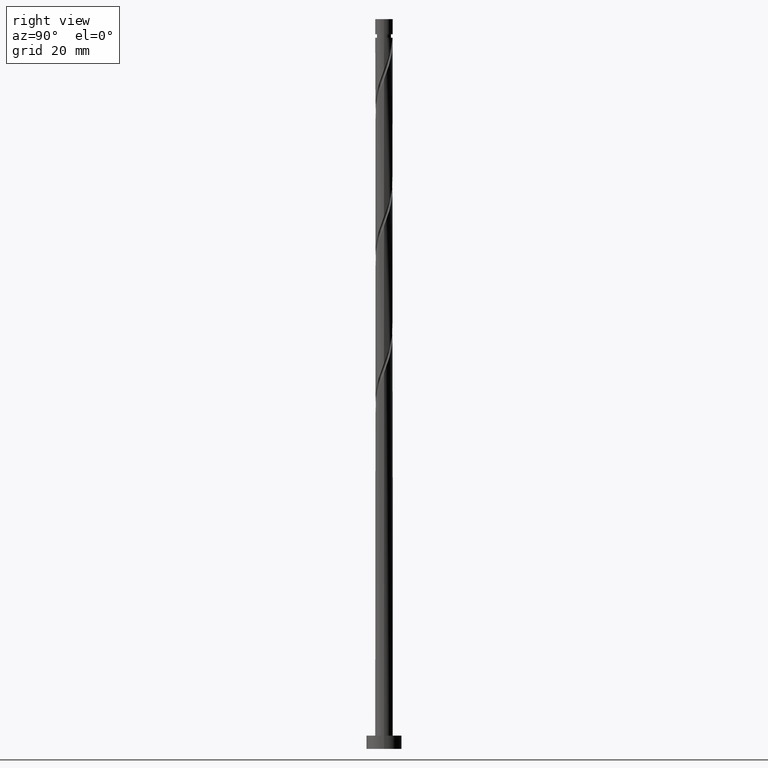
[diagram: clean part render]
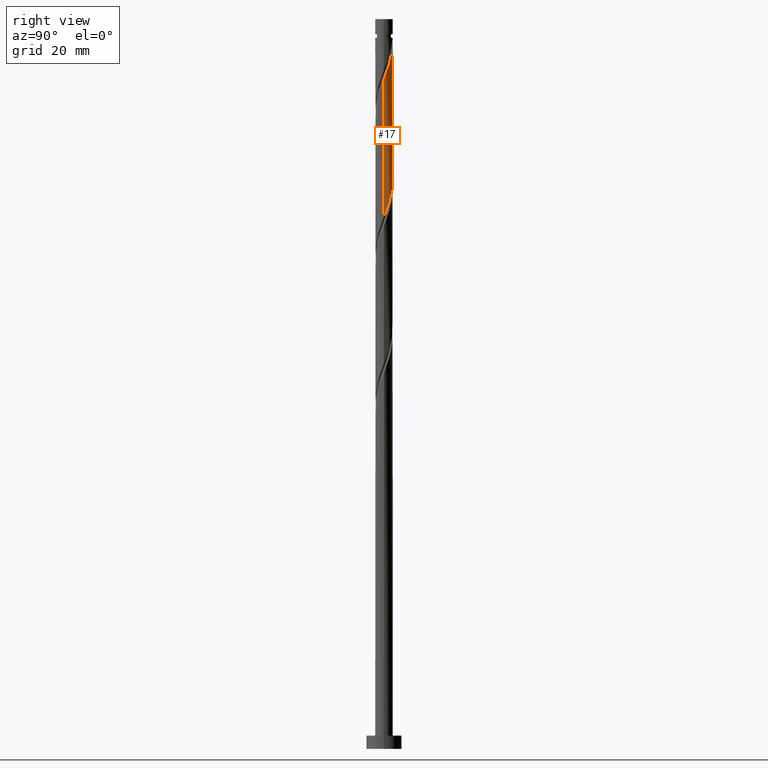
[diagram: same view with one face highlighted and labeled with its STEP entity id]
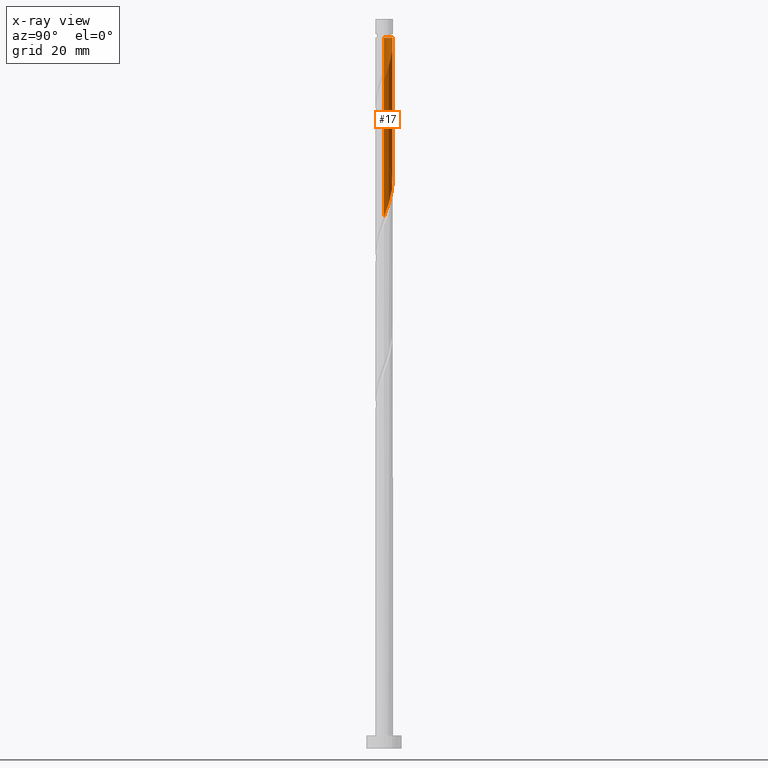
[diagram: x-ray of the same camera — body ghosted, the highlighted face saturated]
A machine part, right view. The second image highlights one B-rep face of the part: STEP entity #17.
The next image is the same camera in x-ray: the body ghosted, the highlighted face saturated — about 0% of this face is hidden behind the body in this view.
In plain terms, the highlighted cylindrical surface (edge-blend (fillet) strip) has radius 2 mm, axis along (-0, -0, -1).
Its self-contained STEP definition (entity closure, byte-faithful):
#17 = ADVANCED_FACE ( 'NONE', ( #1315 ), #1201, .T. ) ;
#19 = ORIENTED_EDGE ( 'NONE', *, *, #1736, .F. ) ;
#68 = CARTESIAN_POINT ( 'NONE',  ( 1.980049565276632340, 0.3856594865056684474, 121.9786417367380835 ) ) ;
#74 = ORIENTED_EDGE ( 'NONE', *, *, #1160, .F. ) ;
#84 = DIRECTION ( 'NONE',  ( -0.000000000000000000, -0.000000000000000000, -1.000000000000000000 ) ) ;
#91 = CARTESIAN_POINT ( 'NONE',  ( 0.3979949748426486189, 1.959999999999999520, 128.2286417367380693 ) ) ;
#103 = LINE ( 'NONE', #1595, #358 ) ;
#129 = DIRECTION ( 'NONE',  ( -1.000000000000000000, 0.000000000000000000, 0.000000000000000000 ) ) ;
#171 = CARTESIAN_POINT ( 'NONE',  ( 1.324015695162691797, 1.521943481029063294, 156.7008639589602979 ) ) ;
#217 = CARTESIAN_POINT ( 'NONE',  ( -1.999999999999999556, -1.330886815482187283E-15, 137.6255417252814937 ) ) ;
#219 = CARTESIAN_POINT ( 'NONE',  ( 1.667354236715038684, 1.104504345536226229, 124.0619750700713837 ) ) ;
#229 = CARTESIAN_POINT ( 'NONE',  ( -1.999999999999999556, -1.330886815482187480E-15, 137.6255417252814937 ) ) ;
#269 = CARTESIAN_POINT ( 'NONE',  ( 1.104504345536229337, 1.667354236715040905, 157.3953084034047265 ) ) ;
#338 = CARTESIAN_POINT ( 'NONE',  ( 1.324673758792282108, 1.498412303996174533, 125.4508639589602979 ) ) ;
#346 = CARTESIAN_POINT ( 'NONE',  ( 2.000000000000002665, -7.476892221809986216E-16, 152.1650750815280162 ) ) ;
#358 = VECTOR ( 'NONE', #1424, 1000.000000000000000 ) ;
#363 = LINE ( 'NONE', #1288, #1253 ) ;
#368 = CARTESIAN_POINT ( 'NONE',  ( -1.959999999999999520, 0.3979949748426483969, 136.5619750700714121 ) ) ;
#378 = EDGE_CURVE ( 'NONE', #1019, #548, #928, .T. ) ;
#380 = CARTESIAN_POINT ( 'NONE',  ( -1.104504345536226451, 1.667354236715038684, 132.3953084034047265 ) ) ;
#389 = CARTESIAN_POINT ( 'NONE',  ( -1.790205940182196809, 0.8917189533347228414, 135.1730861811824980 ) ) ;
#424 = CARTESIAN_POINT ( 'NONE',  ( -1.999999999999992228, 0.000000000000000000, 161.5619750700714121 ) ) ;
#429 = CARTESIAN_POINT ( 'NONE',  ( 1.672808912829666372, 1.127404036555501587, 155.3119750700713837 ) ) ;
#454 = CARTESIAN_POINT ( 'NONE',  ( 0.3856594865056718890, 1.980049565276634782, 159.4786417367380693 ) ) ;
#480 = CARTESIAN_POINT ( 'NONE',  ( 1.896407278838823540, 0.6353262412077164134, 122.6730861811825122 ) ) ;
#482 = CARTESIAN_POINT ( 'NONE',  ( 0.000000000000000000, 0.000000000000000000, 161.5619750700714121 ) ) ;
#533 = CARTESIAN_POINT ( 'NONE',  ( -1.324015695162688022, 1.521943481029062628, 133.0897528478492120 ) ) ;
#548 = VERTEX_POINT ( 'NONE', #622 ) ;
#551 = CARTESIAN_POINT ( 'NONE',  ( 1.999999999999999556, -2.624389169855325064E-15, 120.9588750586148080 ) ) ;
#570 = CARTESIAN_POINT ( 'NONE',  ( 1.790205940182200806, 0.8917189533347229524, 154.6175306256269266 ) ) ;
#586 =( BOUNDED_CURVE ( )  B_SPLINE_CURVE ( 2, ( #229, #1589, #368, #1738, #389, #905, #1450, #533, #380, #786, #935, #1063, #1319, #1302, #91, #635, #1709, #877, #338, #1570, #219, #768, #480, #68, #1425, #1666, #1015 ),
 .UNSPECIFIED., .F., .T. ) 
 B_SPLINE_CURVE_WITH_KNOTS ( ( 3, 2, 2, 2, 2, 2, 2, 2, 2, 2, 2, 2, 2, 3 ),
 ( 0.4295317669814460171, 0.4375000000000000000, 0.4479166666666666852, 0.4583333333333333148, 0.4687500000000000000, 0.4791666666666666852, 0.4895833333333333148, 0.5000000000000000000, 0.5104166666666666297, 0.5208333333333333703, 0.5312500000000000000, 0.5416666666666666297, 0.5520833333333333703, 0.5545317669814462391 ),
 .UNSPECIFIED. ) 
 CURVE ( )  GEOMETRIC_REPRESENTATION_ITEM ( )  RATIONAL_B_SPLINE_CURVE ( ( 0.9062941362546449442, 0.9031415850403486933, 0.9090909090909243817, 0.9013135103398426384, 0.9090909090909243817, 0.9013135103398426384, 0.9090909090909243817, 0.9013135103398426384, 0.9090909090909243817, 0.9013135103398426384, 0.9090909090909243817, 0.9013135103398426384, 0.9090909090909243817, 0.9013135103398426384, 0.9090909090909243817, 0.9013135103398426384, 0.9090909090909243817, 0.9013135103398426384, 0.9090909090909243817, 0.9013135103398426384, 0.9090909090909243817, 0.9013135103398426384, 0.9090909090909243817, 0.9013135103398426384, 0.9090909090909243817, 0.9072628343904182158, 0.9062941362546447222 ) ) 
 REPRESENTATION_ITEM ( '' )  );
#622 = CARTESIAN_POINT ( 'NONE',  ( -0.3979949748426701572, 1.960000000000001297, 161.5619750700714690 ) ) ;
#635 = CARTESIAN_POINT ( 'NONE',  ( 0.6560338701139459827, 1.907602967534731464, 127.5341972922936833 ) ) ;
#641 = DIRECTION ( 'NONE',  ( -0.000000000000000000, -0.000000000000000000, -1.000000000000000000 ) ) ;
#689 = EDGE_LOOP ( 'NONE', ( #899, #831, #74, #19, #1079 ) ) ;
#708 =( BOUNDED_CURVE ( )  B_SPLINE_CURVE ( 2, ( #980, #1520, #847, #822, #570, #429, #1386, #171, #269, #1250, #1369, #454, #1529, #989, #856 ),
 .UNSPECIFIED., .F., .T. ) 
 B_SPLINE_CURVE_WITH_KNOTS ( ( 3, 2, 2, 2, 2, 2, 2, 3 ),
 ( 0.6795317669814462391, 0.6875000000000000000, 0.6979166666666666297, 0.7083333333333331483, 0.7187499999999998890, 0.7291666666666666297, 0.7395833333333330373, 0.7499999999999997780 ),
 .UNSPECIFIED. ) 
 CURVE ( )  GEOMETRIC_REPRESENTATION_ITEM ( )  RATIONAL_B_SPLINE_CURVE ( ( 0.9062941362546513835, 0.9031415850403555767, 0.9090909090909310430, 0.9013135103398492998, 0.9090909090909310430, 0.9013135103398492998, 0.9090909090909310430, 0.9013135103398492998, 0.9090909090909310430, 0.9013135103398492998, 0.9090909090909310430, 0.9013135103398492998, 0.9090909090909310430, 0.9013135103398495218, 0.9090909090909308210 ) ) 
 REPRESENTATION_ITEM ( '' )  );
#768 = CARTESIAN_POINT ( 'NONE',  ( 1.812764992401016295, 0.8849929959097645460, 123.3675306256269693 ) ) ;
#786 = CARTESIAN_POINT ( 'NONE',  ( -0.8849929959097657672, 1.812764992401015851, 131.7008639589602979 ) ) ;
#822 = CARTESIAN_POINT ( 'NONE',  ( 1.907602967534735683, 0.6560338701139443174, 153.9230861811825264 ) ) ;
#831 = ORIENTED_EDGE ( 'NONE', *, *, #1501, .T. ) ;
#847 = CARTESIAN_POINT ( 'NONE',  ( 1.960000000000003073, 0.3979949748426481748, 153.2286417367380977 ) ) ;
#856 = CARTESIAN_POINT ( 'NONE',  ( -0.3979949748426701572, 1.960000000000001297, 161.5619750700714690 ) ) ;
#877 = CARTESIAN_POINT ( 'NONE',  ( 1.127404036555502476, 1.672808912829662376, 126.1453084034047691 ) ) ;
#899 = ORIENTED_EDGE ( 'NONE', *, *, #1004, .F. ) ;
#905 = CARTESIAN_POINT ( 'NONE',  ( -1.672808912829663486, 1.127404036555500921, 134.4786417367380693 ) ) ;
#928 = CIRCLE ( 'NONE', #1465, 1.999999999999992228 ) ;
#935 = CARTESIAN_POINT ( 'NONE',  ( -0.6353262412077175236, 1.896407278838823096, 131.0064195145158408 ) ) ;
#980 = CARTESIAN_POINT ( 'NONE',  ( 2.000000000000002665, -7.476892221809986216E-16, 152.1650750815280162 ) ) ;
#989 = CARTESIAN_POINT ( 'NONE',  ( -0.1399560795713446493, 2.012397032465270019, 160.8675306256270119 ) ) ;
#1004 = EDGE_CURVE ( 'NONE', #1164, #548, #708, .T. ) ;
#1015 = CARTESIAN_POINT ( 'NONE',  ( 1.999999999999999556, -2.624389169855325064E-15, 120.9588750586148223 ) ) ;
#1019 = VERTEX_POINT ( 'NONE', #424 ) ;
#1063 = CARTESIAN_POINT ( 'NONE',  ( -0.3856594865056697241, 1.980049565276632340, 130.3119750700714405 ) ) ;
#1079 = ORIENTED_EDGE ( 'NONE', *, *, #378, .T. ) ;
#1160 = EDGE_CURVE ( 'NONE', #1497, #1646, #586, .T. ) ;
#1164 = VERTEX_POINT ( 'NONE', #346 ) ;
#1201 = CYLINDRICAL_SURFACE ( 'NONE', #1611, 2.000000000000000000 ) ;
#1211 = DIRECTION ( 'NONE',  ( -0.000000000000000000, -0.000000000000000000, -1.000000000000000000 ) ) ;
#1250 = CARTESIAN_POINT ( 'NONE',  ( 0.8849929959097684318, 1.812764992401017849, 158.0897528478492120 ) ) ;
#1253 = VECTOR ( 'NONE', #641, 1000.000000000000000 ) ;
#1288 = CARTESIAN_POINT ( 'NONE',  ( -2.000000000000000000, 0.000000000000000000, 165.8000000000000114 ) ) ;
#1302 = CARTESIAN_POINT ( 'NONE',  ( 0.1399560795713525041, 2.012397032465266911, 128.9230861811825264 ) ) ;
#1315 = FACE_OUTER_BOUND ( 'NONE', #689, .T. ) ;
#1319 = CARTESIAN_POINT ( 'NONE',  ( -0.1228517034671585684, 1.996223298870949403, 129.6175306256269550 ) ) ;
#1369 = CARTESIAN_POINT ( 'NONE',  ( 0.6353262412077200771, 1.896407278838825983, 158.7841972922936691 ) ) ;
#1386 = CARTESIAN_POINT ( 'NONE',  ( 1.498412303996179196, 1.324673758792282108, 156.0064195145158124 ) ) ;
#1419 = DIRECTION ( 'NONE',  ( -1.000000000000000000, 0.000000000000000000, 0.000000000000000000 ) ) ;
#1424 = DIRECTION ( 'NONE',  ( -0.000000000000000000, -0.000000000000000000, -1.000000000000000000 ) ) ;
#1425 = CARTESIAN_POINT ( 'NONE',  ( 1.996223298870949403, 0.1228517034671576524, 121.2841972922935980 ) ) ;
#1450 = CARTESIAN_POINT ( 'NONE',  ( -1.498412303996174977, 1.324673758792281442, 133.7841972922936122 ) ) ;
#1465 = AXIS2_PLACEMENT_3D ( 'NONE', #482, #84, #1419 ) ;
#1497 = VERTEX_POINT ( 'NONE', #217 ) ;
#1501 = EDGE_CURVE ( 'NONE', #1164, #1646, #103, .T. ) ;
#1520 = CARTESIAN_POINT ( 'NONE',  ( 2.000000000000002665, 0.2010075630518413925, 152.6985014507172593 ) ) ;
#1529 = CARTESIAN_POINT ( 'NONE',  ( 0.1228517034671607472, 1.996223298870952290, 160.1730861811824980 ) ) ;
#1570 = CARTESIAN_POINT ( 'NONE',  ( 1.521943481029063072, 1.324015695162687356, 124.7564195145158550 ) ) ;
#1589 = CARTESIAN_POINT ( 'NONE',  ( -2.000000000000001332, 0.2010075630518366463, 137.0921153560922221 ) ) ;
#1595 = CARTESIAN_POINT ( 'NONE',  ( 2.000000000000000000, 2.449293598294706414E-16, 165.8000000000000114 ) ) ;
#1611 = AXIS2_PLACEMENT_3D ( 'NONE', #1742, #1211, #129 ) ;
#1646 = VERTEX_POINT ( 'NONE', #551 ) ;
#1666 = CARTESIAN_POINT ( 'NONE',  ( 1.999999999999999112, 0.06148390331534764330, 121.1220387466429429 ) ) ;
#1709 = CARTESIAN_POINT ( 'NONE',  ( 0.8917189533347238406, 1.790205940182196587, 126.8397528478491836 ) ) ;
#1736 = EDGE_CURVE ( 'NONE', #1019, #1497, #363, .T. ) ;
#1738 = CARTESIAN_POINT ( 'NONE',  ( -1.907602967534731686, 0.6560338701139444284, 135.8675306256269835 ) ) ;
#1742 = CARTESIAN_POINT ( 'NONE',  ( 0.000000000000000000, 0.000000000000000000, 165.8000000000000114 ) ) ;